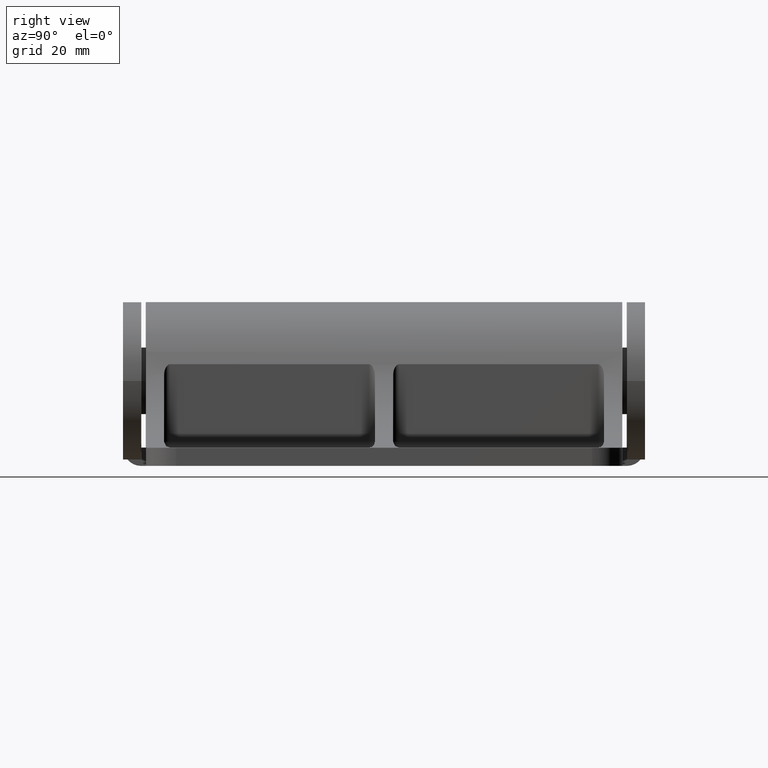
[diagram: clean part render]
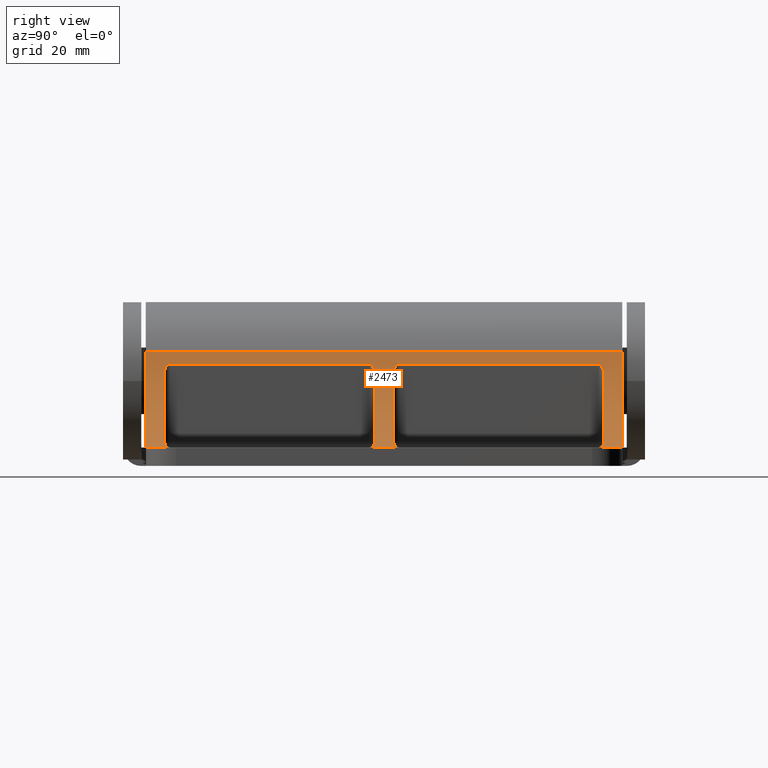
[diagram: same view with one face highlighted and labeled with its STEP entity id]
A machine part, right view. The second image highlights one B-rep face of the part: STEP entity #2473.
In plain terms, the highlighted cylindrical surface (partial cylindrical patch) has radius 25 mm, axis along (0, 1, 0).
Its self-contained STEP definition (entity closure, byte-faithful):
#4 = ORIENTED_EDGE ( 'NONE', *, *, #1363, .F. ) ;
#17 = EDGE_CURVE ( 'NONE', #794, #1335, #2152, .T. ) ;
#22 = ORIENTED_EDGE ( 'NONE', *, *, #872, .T. ) ;
#36 = CARTESIAN_POINT ( 'NONE',  ( 14.00000000000000000, -0.9555676417443239600, 6.750000000000000000 ) ) ;
#64 = CARTESIAN_POINT ( 'NONE',  ( 35.32704350000000200, 11.00000000000000000, 78.25000000000000000 ) ) ;
#91 = LINE ( 'NONE', #2711, #1553 ) ;
#101 = EDGE_CURVE ( 'NONE', #827, #199, #2974, .T. ) ;
#108 = ORIENTED_EDGE ( 'NONE', *, *, #3373, .T. ) ;
#126 = VERTEX_POINT ( 'NONE', #2371 ) ;
#165 = ORIENTED_EDGE ( 'NONE', *, *, #101, .T. ) ;
#172 = CARTESIAN_POINT ( 'NONE',  ( 31.23408551761526300, 10.66971432365924400, 79.00316013941129300 ) ) ;
#189 = VECTOR ( 'NONE', #3784, 1000.000000000000000 ) ;
#197 = CARTESIAN_POINT ( 'NONE',  ( 14.00000000000000000, -0.9555676417443239600, 79.25000000000000000 ) ) ;
#199 = VERTEX_POINT ( 'NONE', #36 ) ;
#201 = CARTESIAN_POINT ( 'NONE',  ( 35.21814119484630400, 11.00000000000000000, 3.753568764750960400 ) ) ;
#204 = CARTESIAN_POINT ( 'NONE',  ( 35.32704350000000200, -14.00000000000000000, 79.25000000000000000 ) ) ;
#207 = CARTESIAN_POINT ( 'NONE',  ( 13.58810227202471300, -1.652565299257452400, 44.58258737571299700 ) ) ;
#209 = CARTESIAN_POINT ( 'NONE',  ( 13.48860911120642200, -1.829542973002575600, 79.11717419793855300 ) ) ;
#235 = LINE ( 'NONE', #2276, #2710 ) ;
#261 = CARTESIAN_POINT ( 'NONE',  ( 12.08556750290151900, -4.789473680145959200, 82.25000000000000000 ) ) ;
#262 = CARTESIAN_POINT ( 'NONE',  ( 28.90374918756622700, 10.16820582554014900, 6.750000000000001800 ) ) ;
#268 = EDGE_CURVE ( 'NONE', #858, #1130, #957, .T. ) ;
#285 = CARTESIAN_POINT ( 'NONE',  ( 13.30550304683896500, -2.165303388886262900, 7.027719999808277300 ) ) ;
#303 = ORIENTED_EDGE ( 'NONE', *, *, #268, .T. ) ;
#308 = VERTEX_POINT ( 'NONE', #2647 ) ;
#356 = B_SPLINE_CURVE_WITH_KNOTS ( 'NONE', 3,
 ( #2645, #544, #2958, #1112, #3279, #1407, #3566, #1732, #3844, #2036, #262, #2357 ),
 .UNSPECIFIED., .F., .F.,
 ( 4, 2, 2, 2, 2, 4 ),
 ( -3.162278256141299300E-005, 0.0008627288843650240300, 0.001757080551291460900, 0.003545783885144335700, 0.005334487218997210700, 0.007123190552850086600 ),
 .UNSPECIFIED. ) ;
#357 = CYLINDRICAL_SURFACE ( 'NONE', #2341, 25.00000000000000000 ) ;
#358 = LINE ( 'NONE', #1075, #3491 ) ;
#372 = VERTEX_POINT ( 'NONE', #545 ) ;
#397 = CARTESIAN_POINT ( 'NONE',  ( 13.48871616763280600, -1.829349646153068500, 41.36724272160788700 ) ) ;
#402 = CARTESIAN_POINT ( 'NONE',  ( 34.73987500713097600, 10.99482334420536000, 45.38256607016204900 ) ) ;
#418 = CARTESIAN_POINT ( 'NONE',  ( 13.58701467613742000, -1.654488470678127500, 41.41689651579471100 ) ) ;
#420 = DIRECTION ( 'NONE',  ( -0.0000000000000000000, -0.0000000000000000000, -1.000000000000000000 ) ) ;
#426 = VERTEX_POINT ( 'NONE', #3776 ) ;
#444 = CARTESIAN_POINT ( 'NONE',  ( 14.00000000000000000, -0.9555676417443239600, 41.50000000000000000 ) ) ;
#461 = CARTESIAN_POINT ( 'NONE',  ( 13.78859866797136400, -1.306068284386677300, 41.48314066909008300 ) ) ;
#480 = DIRECTION ( 'NONE',  ( 0.0000000000000000000, 0.0000000000000000000, 1.000000000000000000 ) ) ;
#493 = CARTESIAN_POINT ( 'NONE',  ( 12.99999999999999800, -2.752639040685591600, 45.39672439127620900 ) ) ;
#503 = CARTESIAN_POINT ( 'NONE',  ( 13.89381907090108100, -1.129168549132972800, 44.49999999999999300 ) ) ;
#504 = CARTESIAN_POINT ( 'NONE',  ( 13.21534665682276500, -2.333847621722291400, 78.88689612842732400 ) ) ;
#529 = EDGE_CURVE ( 'NONE', #3148, #372, #3557, .T. ) ;
#544 = CARTESIAN_POINT ( 'NONE',  ( 35.03471540923575800, 10.99999999999999800, 7.691534638846091500 ) ) ;
#545 = CARTESIAN_POINT ( 'NONE',  ( 35.32704350000000200, 11.00000000000000000, 3.760707209522820000 ) ) ;
#552 = CIRCLE ( 'NONE', #1470, 25.00000000000000000 ) ;
#560 = CARTESIAN_POINT ( 'NONE',  ( 13.30336219868467900, -2.168063022087028700, 41.22678529787035700 ) ) ;
#562 = CARTESIAN_POINT ( 'NONE',  ( 13.00000000000000000, -2.752639040685705300, 7.750000000000000000 ) ) ;
#573 = CARTESIAN_POINT ( 'NONE',  ( 13.48908326613625900, -1.828694022088327900, 6.882562123978167400 ) ) ;
#635 = EDGE_CURVE ( 'NONE', #126, #1413, #741, .T. ) ;
#647 = CARTESIAN_POINT ( 'NONE',  ( 35.00000000000000000, 10.99786075945515900, 82.25000000000000000 ) ) ;
#700 = CARTESIAN_POINT ( 'NONE',  ( 33.86124982922083900, 10.95871239007347200, 45.20946450001608200 ) ) ;
#725 = CARTESIAN_POINT ( 'NONE',  ( 13.21557542212312700, -2.333425051034602000, 41.13695356058123300 ) ) ;
#741 = B_SPLINE_CURVE_WITH_KNOTS ( 'NONE', 3,
 ( #1794, #1287, #1191, #3608, #172, #3558, #2876, #3500 ),
 .UNSPECIFIED., .F., .F.,
 ( 4, 2, 2, 4 ),
 ( 0.0000000000000000000, 0.001797253634122010900, 0.003594507268244021900, 0.007189014536488068900 ),
 .UNSPECIFIED. ) ;
#744 = CARTESIAN_POINT ( 'NONE',  ( 13.89260106845530500, -1.131159926789804000, 41.50000000000000700 ) ) ;
#794 = VERTEX_POINT ( 'NONE', #2863 ) ;
#797 = CARTESIAN_POINT ( 'NONE',  ( 13.06897118857324900, -2.616611433903037700, 78.62591639132229200 ) ) ;
#809 = B_SPLINE_CURVE_WITH_KNOTS ( 'NONE', 3,
 ( #444, #744, #461, #418, #397, #560, #725, #3718, #3506, #3759, #3743, #3730 ),
 .UNSPECIFIED., .F., .F.,
 ( 4, 2, 2, 2, 2, 4 ),
 ( 1.020821111656669100E-017, 0.0006116877171230093900, 0.001223375434246008600, 0.001835063151369007900, 0.002140907009930508300, 0.002446750868492008500 ),
 .UNSPECIFIED. ) ;
#827 = VERTEX_POINT ( 'NONE', #2830 ) ;
#858 = VERTEX_POINT ( 'NONE', #2901 ) ;
#864 = CARTESIAN_POINT ( 'NONE',  ( 35.32704350000000200, -14.00000000000000000, -917.7500000000000000 ) ) ;
#871 = CARTESIAN_POINT ( 'NONE',  ( 13.78859564991382000, -1.306077830729888600, 6.766876177723005100 ) ) ;
#872 = EDGE_CURVE ( 'NONE', #2406, #794, #3010, .T. ) ;
#910 = ORIENTED_EDGE ( 'NONE', *, *, #2115, .T. ) ;
#947 = LINE ( 'NONE', #1654, #189 ) ;
#957 = CIRCLE ( 'NONE', #1971, 25.00000000000000000 ) ;
#969 = DIRECTION ( 'NONE',  ( -1.000000000000000000, 0.0000000000000000000, 0.0000000000000000000 ) ) ;
#984 = CARTESIAN_POINT ( 'NONE',  ( 32.40082339440695600, 10.83514365025621900, 44.93581641594376900 ) ) ;
#1009 = CARTESIAN_POINT ( 'NONE',  ( 35.32704350000000200, 11.00000000000000000, 45.50000000000000000 ) ) ;
#1032 = CARTESIAN_POINT ( 'NONE',  ( 35.32704350000000200, 11.00000000000000000, 82.23929279047729300 ) ) ;
#1051 = CARTESIAN_POINT ( 'NONE',  ( 14.00000000000000000, -0.9555676417443239600, 79.25000000000000000 ) ) ;
#1064 = CARTESIAN_POINT ( 'NONE',  ( 35.32704350000000200, 11.00000000000000000, 45.50000000000000000 ) ) ;
#1066 = CARTESIAN_POINT ( 'NONE',  ( 13.06937200166873400, -2.615828634637560800, 45.12327146425754200 ) ) ;
#1067 = CARTESIAN_POINT ( 'NONE',  ( 13.89258267897520800, -1.131189992739108900, 79.24999999999997200 ) ) ;
#1073 = CARTESIAN_POINT ( 'NONE',  ( 13.01911376466994600, -2.714764249779078500, 78.45069290016549200 ) ) ;
#1075 = CARTESIAN_POINT ( 'NONE',  ( 35.32704350000000200, 11.00000000000000000, -917.7500000000000000 ) ) ;
#1107 = CARTESIAN_POINT ( 'NONE',  ( 35.21814119484630400, 11.00000000000000000, 82.24643123524906200 ) ) ;
#1112 = CARTESIAN_POINT ( 'NONE',  ( 34.15385693524145700, 10.97417854767842500, 7.516675395004576800 ) ) ;
#1118 = EDGE_CURVE ( 'NONE', #1413, #1700, #358, .T. ) ;
#1127 = CARTESIAN_POINT ( 'NONE',  ( 35.32704350000000200, 11.00000000000000000, 3.760707209522820000 ) ) ;
#1129 = LINE ( 'NONE', #3212, #2865 ) ;
#1130 = VERTEX_POINT ( 'NONE', #1979 ) ;
#1146 = CARTESIAN_POINT ( 'NONE',  ( 14.00000000000000000, -0.9555676417443239600, 6.750000000000000000 ) ) ;
#1156 = EDGE_CURVE ( 'NONE', #426, #2260, #1129, .T. ) ;
#1191 = CARTESIAN_POINT ( 'NONE',  ( 29.48322348409131900, 10.31472466448399500, 79.20942932572336300 ) ) ;
#1203 = B_SPLINE_CURVE_WITH_KNOTS ( 'NONE', 3,
 ( #197, #1067, #3796, #1983, #209, #2306, #504, #2605, #797, #2911, #1073, #3233, #1362, #3530 ),
 .UNSPECIFIED., .F., .F.,
 ( 4, 2, 2, 2, 2, 2, 4 ),
 ( 1.020821111656669100E-017, 0.0006117924539107866700, 0.001223584907821563100, 0.001835377361732339400, 0.002141273588687715300, 0.002294221702165402100, 0.002447169815643088600 ),
 .UNSPECIFIED. ) ;
#1208 = FACE_OUTER_BOUND ( 'NONE', #2640, .T. ) ;
#1239 = CARTESIAN_POINT ( 'NONE',  ( 35.00000000000000000, 10.99786075945515900, 3.750000000000000000 ) ) ;
#1247 = CARTESIAN_POINT ( 'NONE',  ( 35.32704350000000200, 11.00000000000000000, 82.23929279047729300 ) ) ;
#1255 = ORIENTED_EDGE ( 'NONE', *, *, #3618, .F. ) ;
#1267 = CARTESIAN_POINT ( 'NONE',  ( 30.64998219383678400, 10.56585395281621200, 44.66371878605460900 ) ) ;
#1287 = CARTESIAN_POINT ( 'NONE',  ( 28.90373700769832500, 10.16820227307868100, 79.25000000000004300 ) ) ;
#1335 = VERTEX_POINT ( 'NONE', #2726 ) ;
#1337 = CARTESIAN_POINT ( 'NONE',  ( 13.00000000000000000, -2.752639040685680000, 45.50000000000000000 ) ) ;
#1339 = AXIS2_PLACEMENT_3D ( 'NONE', #1462, #3607, #1778 ) ;
#1343 = ORIENTED_EDGE ( 'NONE', *, *, #2929, .F. ) ;
#1344 = CARTESIAN_POINT ( 'NONE',  ( 13.17887496775890600, -2.404085393343278200, 44.92459299097480900 ) ) ;
#1362 = CARTESIAN_POINT ( 'NONE',  ( 12.99999999999999500, -2.752639040685594300, 78.30148547019008700 ) ) ;
#1363 = EDGE_CURVE ( 'NONE', #3273, #3682, #91, .T. ) ;
#1395 = VERTEX_POINT ( 'NONE', #647 ) ;
#1407 = CARTESIAN_POINT ( 'NONE',  ( 32.98429201528152500, 10.89688768709177100, 7.292011166874737600 ) ) ;
#1413 = VERTEX_POINT ( 'NONE', #64 ) ;
#1428 = VERTEX_POINT ( 'NONE', #2999 ) ;
#1430 = CARTESIAN_POINT ( 'NONE',  ( 13.01709029644028000, -2.718631003971106400, 7.545256430756651000 ) ) ;
#1438 = DIRECTION ( 'NONE',  ( 0.0000000000000000000, 0.0000000000000000000, 1.000000000000000000 ) ) ;
#1447 = CARTESIAN_POINT ( 'NONE',  ( 34.15214162882099900, 11.00000000000000200, 40.73497934132634400 ) ) ;
#1456 = ORIENTED_EDGE ( 'NONE', *, *, #2070, .T. ) ;
#1462 = CARTESIAN_POINT ( 'NONE',  ( 35.32704350000000200, -14.00000000000000000, 82.25000000000000000 ) ) ;
#1470 = AXIS2_PLACEMENT_3D ( 'NONE', #2210, #420, #2526 ) ;
#1476 = ORIENTED_EDGE ( 'NONE', *, *, #635, .T. ) ;
#1489 = VERTEX_POINT ( 'NONE', #1009 ) ;
#1553 = VECTOR ( 'NONE', #2399, 1000.000000000000000 ) ;
#1579 = B_SPLINE_CURVE_WITH_KNOTS ( 'NONE', 3,
 ( #1247, #1107, #2892, #2934 ),
 .UNSPECIFIED., .F., .F.,
 ( 4, 4 ),
 ( 6.938893903907228400E-018, 0.0003272257196158692200 ),
 .UNSPECIFIED. ) ;
#1588 = CARTESIAN_POINT ( 'NONE',  ( 28.90374918756621300, 10.16820582554014700, 44.49999999999999300 ) ) ;
#1654 = CARTESIAN_POINT ( 'NONE',  ( 35.32704350000000200, 11.00000000000000000, -917.7500000000000000 ) ) ;
#1673 = VERTEX_POINT ( 'NONE', #1051 ) ;
#1675 = CARTESIAN_POINT ( 'NONE',  ( 13.30637296823906400, -2.163680529477961700, 44.77685549763462800 ) ) ;
#1685 = ORIENTED_EDGE ( 'NONE', *, *, #2882, .T. ) ;
#1693 = ORIENTED_EDGE ( 'NONE', *, *, #2238, .T. ) ;
#1700 = VERTEX_POINT ( 'NONE', #1032 ) ;
#1732 = CARTESIAN_POINT ( 'NONE',  ( 31.23414710852478700, 10.66972483356650200, 6.996848832978313800 ) ) ;
#1756 = CARTESIAN_POINT ( 'NONE',  ( 13.10346015427217200, -2.549280542977033100, 7.301009753167759800 ) ) ;
#1765 = DIRECTION ( 'NONE',  ( 1.000000000000000000, 0.0000000000000000000, 0.0000000000000000000 ) ) ;
#1775 = ORIENTED_EDGE ( 'NONE', *, *, #1958, .F. ) ;
#1778 = DIRECTION ( 'NONE',  ( 1.000000000000000000, 9.020562075079396900E-016, 0.0000000000000000000 ) ) ;
#1781 = ORIENTED_EDGE ( 'NONE', *, *, #2141, .T. ) ;
#1794 = CARTESIAN_POINT ( 'NONE',  ( 28.32704349999999800, 10.00000000000000000, 79.25000000000000000 ) ) ;
#1885 = CARTESIAN_POINT ( 'NONE',  ( 35.03471540923247600, 11.00000000000000000, 45.44153463886250700 ) ) ;
#1958 = EDGE_CURVE ( 'NONE', #2406, #2872, #809, .T. ) ;
#1960 = CARTESIAN_POINT ( 'NONE',  ( 30.64993275112991000, 10.56584423403366400, 41.33628735988499900 ) ) ;
#1969 = CARTESIAN_POINT ( 'NONE',  ( 35.00000000000000000, 10.99786075945515900, 3.750000000000000000 ) ) ;
#1971 = AXIS2_PLACEMENT_3D ( 'NONE', #2859, #2843, #2832 ) ;
#1979 = CARTESIAN_POINT ( 'NONE',  ( 14.00000000000000000, -0.9555676417443239600, 44.50000000000000000 ) ) ;
#1982 = CARTESIAN_POINT ( 'NONE',  ( 13.48945192029689000, -1.828044692733622500, 44.63241549243181100 ) ) ;
#1983 = CARTESIAN_POINT ( 'NONE',  ( 13.58694675402880100, -1.654607530796052400, 79.16686810648630500 ) ) ;
#1984 = B_SPLINE_CURVE_WITH_KNOTS ( 'NONE', 3,
 ( #1337, #493, #2898, #1066, #3221, #1344, #3519, #1675, #3795, #1982, #207, #2304, #503, #2603 ),
 .UNSPECIFIED., .F., .F.,
 ( 4, 2, 2, 2, 2, 2, 4 ),
 ( 0.002447169815643105900, 0.002753971122191158300, 0.003060772428739210600, 0.003367573735287262500, 0.003674375041835315300, 0.004287977654931421700, 0.004901580268027529000 ),
 .UNSPECIFIED. ) ;
#2033 = CARTESIAN_POINT ( 'NONE',  ( 14.00000000000000000, -0.9555676417443239600, 41.50000000000000000 ) ) ;
#2036 = CARTESIAN_POINT ( 'NONE',  ( 29.48324796470684800, 10.31473085671303400, 6.790572330736502200 ) ) ;
#2048 = DIRECTION ( 'NONE',  ( 0.0000000000000000000, 0.0000000000000000000, -1.000000000000000000 ) ) ;
#2061 = CARTESIAN_POINT ( 'NONE',  ( 13.21989621879006900, -2.325997820190058600, 7.121149853169387500 ) ) ;
#2070 = EDGE_CURVE ( 'NONE', #1700, #1395, #1579, .T. ) ;
#2115 = EDGE_CURVE ( 'NONE', #1673, #126, #3797, .T. ) ;
#2141 = EDGE_CURVE ( 'NONE', #1489, #858, #3346, .T. ) ;
#2152 = B_SPLINE_CURVE_WITH_KNOTS ( 'NONE', 3,
 ( #3150, #2396, #3051, #1960, #2222, #2325, #1447, #2281 ),
 .UNSPECIFIED., .F., .F.,
 ( 4, 2, 2, 4 ),
 ( 0.0000000000000000000, 0.001797253634122001600, 0.003594507268244003200, 0.007189014536488009900 ),
 .UNSPECIFIED. ) ;
#2210 = CARTESIAN_POINT ( 'NONE',  ( 35.32704350000000200, -14.00000000000000000, 3.750000000000000000 ) ) ;
#2222 = CARTESIAN_POINT ( 'NONE',  ( 31.23408551761524500, 10.66971432365923900, 41.25316013941127800 ) ) ;
#2238 = EDGE_CURVE ( 'NONE', #1428, #2872, #235, .T. ) ;
#2260 = VERTEX_POINT ( 'NONE', #2582 ) ;
#2271 = DIRECTION ( 'NONE',  ( 0.0000000000000000000, 0.0000000000000000000, 1.000000000000000000 ) ) ;
#2276 = CARTESIAN_POINT ( 'NONE',  ( 13.00000000000000000, -2.752639040685689800, -917.7500000000000000 ) ) ;
#2277 = ORIENTED_EDGE ( 'NONE', *, *, #2278, .F. ) ;
#2278 = EDGE_CURVE ( 'NONE', #426, #1130, #1984, .T. ) ;
#2281 = CARTESIAN_POINT ( 'NONE',  ( 35.32704350000000200, 11.00000000000000000, 40.50000000000000000 ) ) ;
#2304 = CARTESIAN_POINT ( 'NONE',  ( 13.79022415671148000, -1.303302713814966200, 44.51648601581624800 ) ) ;
#2306 = CARTESIAN_POINT ( 'NONE',  ( 13.30333147849510300, -2.168121468107721200, 78.97674940788115800 ) ) ;
#2325 = CARTESIAN_POINT ( 'NONE',  ( 32.98406296018482900, 10.91784263567267900, 40.96971776610072200 ) ) ;
#2341 = AXIS2_PLACEMENT_3D ( 'NONE', #864, #1438, #1765 ) ;
#2349 = CARTESIAN_POINT ( 'NONE',  ( 13.00000000000000000, -2.752639040685680000, 40.50000000000000000 ) ) ;
#2357 = CARTESIAN_POINT ( 'NONE',  ( 28.32704349999999800, 10.00000000000000000, 6.750000000000000000 ) ) ;
#2371 = CARTESIAN_POINT ( 'NONE',  ( 28.32704349999999800, 10.00000000000000000, 79.25000000000000000 ) ) ;
#2375 = CARTESIAN_POINT ( 'NONE',  ( 13.35019689269766900, -2.082470377840684800, 6.987683126144347100 ) ) ;
#2396 = CARTESIAN_POINT ( 'NONE',  ( 28.90373700769831800, 10.16820227307868100, 41.49999999999999300 ) ) ;
#2399 = DIRECTION ( 'NONE',  ( 0.0000000000000000000, 0.0000000000000000000, 1.000000000000000000 ) ) ;
#2406 = VERTEX_POINT ( 'NONE', #2033 ) ;
#2437 = DIRECTION ( 'NONE',  ( 0.0000000000000000000, 0.0000000000000000000, 1.000000000000000000 ) ) ;
#2473 = ADVANCED_FACE ( 'NONE', ( #1208 ), #357, .F. ) ;
#2502 = DIRECTION ( 'NONE',  ( 1.000000000000000000, 0.0000000000000000000, 0.0000000000000000000 ) ) ;
#2514 = CARTESIAN_POINT ( 'NONE',  ( 34.15385693524143600, 10.97417854767842400, 45.26667539500456900 ) ) ;
#2526 = DIRECTION ( 'NONE',  ( 1.000000000000000000, 9.020562075079396900E-016, 0.0000000000000000000 ) ) ;
#2530 = VECTOR ( 'NONE', #2926, 1000.000000000000000 ) ;
#2567 = DIRECTION ( 'NONE',  ( 0.0000000000000000000, 0.0000000000000000000, 1.000000000000000000 ) ) ;
#2582 = CARTESIAN_POINT ( 'NONE',  ( 13.00000000000000000, -2.752639040685705300, 78.25000000000000000 ) ) ;
#2603 = CARTESIAN_POINT ( 'NONE',  ( 14.00000000000000000, -0.9555676417443239600, 44.50000000000000000 ) ) ;
#2605 = CARTESIAN_POINT ( 'NONE',  ( 13.10333938966908300, -2.549518011633630500, 78.69869715479623600 ) ) ;
#2640 = EDGE_LOOP ( 'NONE', ( #2741, #1456, #3330, #4, #3856, #3134, #108, #1685, #165, #1343, #1693, #1775, #22, #3112, #3476, #1781, #303, #2277, #2933, #1255, #910, #1476 ) ) ;
#2645 = CARTESIAN_POINT ( 'NONE',  ( 35.32704350000000200, 11.00000000000000000, 7.750000000000000000 ) ) ;
#2647 = CARTESIAN_POINT ( 'NONE',  ( 35.32704350000000200, 11.00000000000000000, 7.750000000000000000 ) ) ;
#2684 = CARTESIAN_POINT ( 'NONE',  ( 13.58728765549138700, -1.654012325799006000, 6.832997944465719600 ) ) ;
#2704 = CARTESIAN_POINT ( 'NONE',  ( 35.32704350000000200, -14.00000000000000000, 41.50000000000000000 ) ) ;
#2710 = VECTOR ( 'NONE', #480, 1000.000000000000000 ) ;
#2711 = CARTESIAN_POINT ( 'NONE',  ( 12.08556750290151900, -4.789473680145959200, -917.7500000000000000 ) ) ;
#2726 = CARTESIAN_POINT ( 'NONE',  ( 35.32704350000000200, 11.00000000000000000, 40.50000000000000000 ) ) ;
#2733 = DIRECTION ( 'NONE',  ( 0.0000000000000000000, 0.0000000000000000000, -1.000000000000000000 ) ) ;
#2741 = ORIENTED_EDGE ( 'NONE', *, *, #1118, .T. ) ;
#2745 = DIRECTION ( 'NONE',  ( -1.000000000000000000, 0.0000000000000000000, 0.0000000000000000000 ) ) ;
#2813 = CARTESIAN_POINT ( 'NONE',  ( 32.98429201528154000, 10.89688768709176800, 45.04201116687473700 ) ) ;
#2830 = CARTESIAN_POINT ( 'NONE',  ( 28.32704349999999800, 10.00000000000000000, 6.750000000000000000 ) ) ;
#2832 = DIRECTION ( 'NONE',  ( 1.000000000000000000, 0.0000000000000000000, 0.0000000000000000000 ) ) ;
#2843 = DIRECTION ( 'NONE',  ( 0.0000000000000000000, 0.0000000000000000000, 1.000000000000000000 ) ) ;
#2859 = CARTESIAN_POINT ( 'NONE',  ( 35.32704350000000200, -14.00000000000000000, 44.50000000000000000 ) ) ;
#2863 = CARTESIAN_POINT ( 'NONE',  ( 28.32704349999999800, 10.00000000000000000, 41.50000000000000000 ) ) ;
#2865 = VECTOR ( 'NONE', #2271, 1000.000000000000000 ) ;
#2872 = VERTEX_POINT ( 'NONE', #2349 ) ;
#2876 = CARTESIAN_POINT ( 'NONE',  ( 34.15214162880843700, 10.99999999999999500, 78.48497934126362500 ) ) ;
#2882 = EDGE_CURVE ( 'NONE', #308, #827, #356, .T. ) ;
#2892 = CARTESIAN_POINT ( 'NONE',  ( 35.10912667485909100, 10.99928844840951400, 82.25000000000000000 ) ) ;
#2898 = CARTESIAN_POINT ( 'NONE',  ( 13.01730376315634200, -2.718208871022964200, 45.29432801110989700 ) ) ;
#2901 = CARTESIAN_POINT ( 'NONE',  ( 28.32704349999999800, 10.00000000000000000, 44.50000000000000000 ) ) ;
#2911 = CARTESIAN_POINT ( 'NONE',  ( 13.02980465692673900, -2.693631460906329900, 78.49648111798238400 ) ) ;
#2926 = DIRECTION ( 'NONE',  ( 0.0000000000000000000, 0.0000000000000000000, 1.000000000000000000 ) ) ;
#2929 = EDGE_CURVE ( 'NONE', #1428, #199, #3782, .T. ) ;
#2933 = ORIENTED_EDGE ( 'NONE', *, *, #1156, .T. ) ;
#2934 = CARTESIAN_POINT ( 'NONE',  ( 35.00000000000000000, 10.99786075945515900, 82.25000000000000000 ) ) ;
#2958 = CARTESIAN_POINT ( 'NONE',  ( 34.73987500713099800, 10.99482334420536100, 7.632566070162059900 ) ) ;
#2959 = CIRCLE ( 'NONE', #1339, 25.00000000000000000 ) ;
#2973 = EDGE_CURVE ( 'NONE', #3682, #1395, #2959, .T. ) ;
#2974 = CIRCLE ( 'NONE', #3854, 25.00000000000000000 ) ;
#2996 = CARTESIAN_POINT ( 'NONE',  ( 13.89254537260500100, -1.131250986928690600, 6.750000000000000000 ) ) ;
#2999 = CARTESIAN_POINT ( 'NONE',  ( 13.00000000000000000, -2.752639040685705300, 7.750000000000000000 ) ) ;
#3010 = CIRCLE ( 'NONE', #3044, 25.00000000000000000 ) ;
#3044 = AXIS2_PLACEMENT_3D ( 'NONE', #2704, #2733, #2745 ) ;
#3051 = CARTESIAN_POINT ( 'NONE',  ( 29.48322348409130500, 10.31472466448399000, 41.45942932572339100 ) ) ;
#3112 = ORIENTED_EDGE ( 'NONE', *, *, #17, .T. ) ;
#3125 = CARTESIAN_POINT ( 'NONE',  ( 12.08556750290151900, -4.789473680145959200, 3.750000000000000000 ) ) ;
#3127 = CARTESIAN_POINT ( 'NONE',  ( 31.23414710852480200, 10.66972483356650900, 44.74684883297830900 ) ) ;
#3134 = ORIENTED_EDGE ( 'NONE', *, *, #529, .T. ) ;
#3148 = VERTEX_POINT ( 'NONE', #1239 ) ;
#3150 = CARTESIAN_POINT ( 'NONE',  ( 28.32704349999999800, 10.00000000000000000, 41.50000000000000000 ) ) ;
#3201 = EDGE_CURVE ( 'NONE', #3273, #3148, #552, .T. ) ;
#3212 = CARTESIAN_POINT ( 'NONE',  ( 13.00000000000000000, -2.752639040685689800, -917.7500000000000000 ) ) ;
#3221 = CARTESIAN_POINT ( 'NONE',  ( 13.10395139511488200, -2.548328410436229200, 45.05007062521804800 ) ) ;
#3233 = CARTESIAN_POINT ( 'NONE',  ( 13.00416145184955000, -2.744369760921881300, 78.35354242055508700 ) ) ;
#3260 = LINE ( 'NONE', #3818, #2530 ) ;
#3273 = VERTEX_POINT ( 'NONE', #3125 ) ;
#3279 = CARTESIAN_POINT ( 'NONE',  ( 33.86124982922083100, 10.95871239007346900, 7.459464500016070900 ) ) ;
#3319 = AXIS2_PLACEMENT_3D ( 'NONE', #204, #2048, #969 ) ;
#3330 = ORIENTED_EDGE ( 'NONE', *, *, #2973, .F. ) ;
#3346 = B_SPLINE_CURVE_WITH_KNOTS ( 'NONE', 3,
 ( #1064, #1885, #402, #2514, #700, #2813, #984, #3127, #1267, #3437, #1588, #3722 ),
 .UNSPECIFIED., .F., .F.,
 ( 4, 2, 2, 2, 2, 4 ),
 ( -3.162278256141180700E-005, 0.0008627288843650164400, 0.001757080551291444800, 0.003545783885144298400, 0.005334487218997151700, 0.007123190552850005100 ),
 .UNSPECIFIED. ) ;
#3373 = EDGE_CURVE ( 'NONE', #372, #308, #947, .T. ) ;
#3437 = CARTESIAN_POINT ( 'NONE',  ( 29.48324796470684800, 10.31473085671303400, 44.54057233073650200 ) ) ;
#3459 = CARTESIAN_POINT ( 'NONE',  ( 35.32704350000000200, -14.00000000000000000, 6.750000000000000000 ) ) ;
#3476 = ORIENTED_EDGE ( 'NONE', *, *, #3641, .T. ) ;
#3491 = VECTOR ( 'NONE', #2567, 1000.000000000000000 ) ;
#3500 = CARTESIAN_POINT ( 'NONE',  ( 35.32704350000000200, 11.00000000000000000, 78.25000000000000000 ) ) ;
#3506 = CARTESIAN_POINT ( 'NONE',  ( 13.06944699228462900, -2.615680689699625200, 40.87702143906814500 ) ) ;
#3519 = CARTESIAN_POINT ( 'NONE',  ( 13.22023536899904500, -2.325351245723337600, 44.87069597909223300 ) ) ;
#3530 = CARTESIAN_POINT ( 'NONE',  ( 13.00000000000000000, -2.752639040685705300, 78.25000000000000000 ) ) ;
#3557 = B_SPLINE_CURVE_WITH_KNOTS ( 'NONE', 3,
 ( #1969, #3787, #201, #1127 ),
 .UNSPECIFIED., .F., .F.,
 ( 4, 4 ),
 ( 0.0000000000000000000, 0.0003272257196158697700 ),
 .UNSPECIFIED. ) ;
#3558 = CARTESIAN_POINT ( 'NONE',  ( 32.98406296018481500, 10.91784263567268300, 78.71971776610071500 ) ) ;
#3566 = CARTESIAN_POINT ( 'NONE',  ( 32.40082339440696300, 10.83514365025621700, 7.185816415943775400 ) ) ;
#3579 = CARTESIAN_POINT ( 'NONE',  ( 13.00000000000000000, -2.752639040685700900, 7.645296733134236100 ) ) ;
#3590 = CARTESIAN_POINT ( 'NONE',  ( 13.06915791395835800, -2.616247208926815400, 7.373749517804936800 ) ) ;
#3607 = DIRECTION ( 'NONE',  ( -0.0000000000000000000, -0.0000000000000000000, -1.000000000000000000 ) ) ;
#3608 = CARTESIAN_POINT ( 'NONE',  ( 30.64993275112993100, 10.56584423403367100, 79.08628735988502000 ) ) ;
#3618 = EDGE_CURVE ( 'NONE', #1673, #2260, #1203, .T. ) ;
#3641 = EDGE_CURVE ( 'NONE', #1335, #1489, #3260, .T. ) ;
#3682 = VERTEX_POINT ( 'NONE', #261 ) ;
#3718 = CARTESIAN_POINT ( 'NONE',  ( 13.10410688341037400, -2.548031346762296600, 40.95014826760297000 ) ) ;
#3722 = CARTESIAN_POINT ( 'NONE',  ( 28.32704349999999800, 10.00000000000000000, 44.50000000000000000 ) ) ;
#3730 = CARTESIAN_POINT ( 'NONE',  ( 13.00000000000000000, -2.752639040685680000, 40.50000000000000000 ) ) ;
#3743 = CARTESIAN_POINT ( 'NONE',  ( 13.00000000000000500, -2.752639040685695500, 40.60495805152680800 ) ) ;
#3759 = CARTESIAN_POINT ( 'NONE',  ( 13.01714087771516600, -2.718529641783850700, 40.70509025190538900 ) ) ;
#3776 = CARTESIAN_POINT ( 'NONE',  ( 13.00000000000000000, -2.752639040685680000, 45.50000000000000000 ) ) ;
#3782 = B_SPLINE_CURVE_WITH_KNOTS ( 'NONE', 3,
 ( #562, #3579, #1430, #3590, #1756, #3861, #2061, #285, #2375, #573, #2684, #871, #2996, #1146 ),
 .UNSPECIFIED., .F., .F.,
 ( 4, 2, 2, 2, 2, 2, 4 ),
 ( 8.673617379884035500E-019, 0.0003090827775718969700, 0.0006181655551437930800, 0.0009272483327156891800, 0.001236331110287585300, 0.001854496665431377500, 0.002472662220575169700 ),
 .UNSPECIFIED. ) ;
#3784 = DIRECTION ( 'NONE',  ( 0.0000000000000000000, 0.0000000000000000000, 1.000000000000000000 ) ) ;
#3787 = CARTESIAN_POINT ( 'NONE',  ( 35.10912667485909100, 10.99928844840953500, 3.750000000000000000 ) ) ;
#3795 = CARTESIAN_POINT ( 'NONE',  ( 13.35110094599012400, -2.080806471750678500, 44.73693344158564900 ) ) ;
#3796 = CARTESIAN_POINT ( 'NONE',  ( 13.78856304144120800, -1.306128199830202100, 79.23313504731268600 ) ) ;
#3797 = CIRCLE ( 'NONE', #3319, 25.00000000000000000 ) ;
#3818 = CARTESIAN_POINT ( 'NONE',  ( 35.32704350000000200, 11.00000000000000000, -917.7500000000000000 ) ) ;
#3844 = CARTESIAN_POINT ( 'NONE',  ( 30.64998219383677700, 10.56585395281621100, 6.913718786054607400 ) ) ;
#3854 = AXIS2_PLACEMENT_3D ( 'NONE', #3459, #2437, #2502 ) ;
#3856 = ORIENTED_EDGE ( 'NONE', *, *, #3201, .T. ) ;
#3861 = CARTESIAN_POINT ( 'NONE',  ( 13.17853666059816900, -2.404730378601544600, 7.175044420196704700 ) ) ;